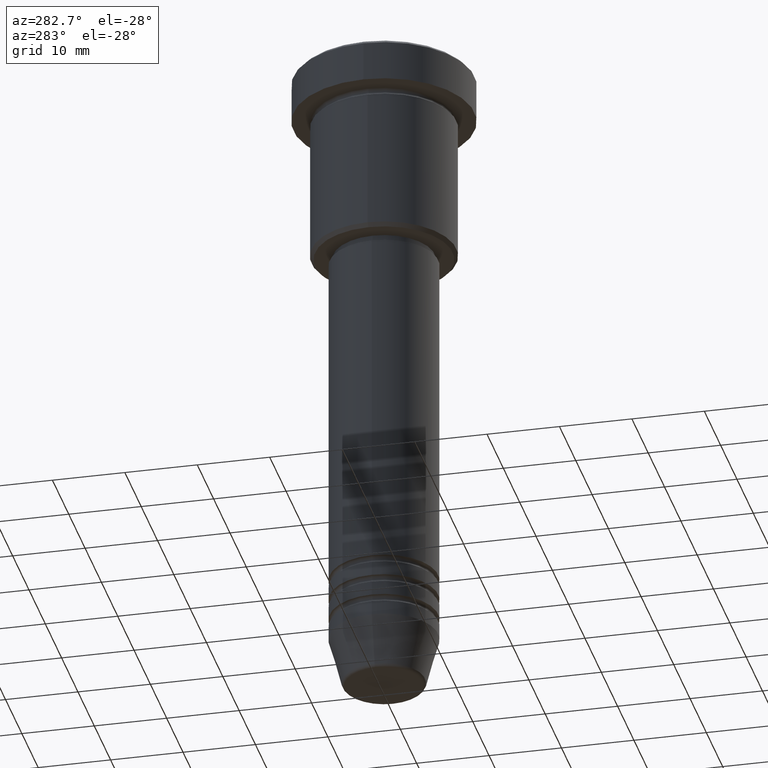
[diagram: clean part render]
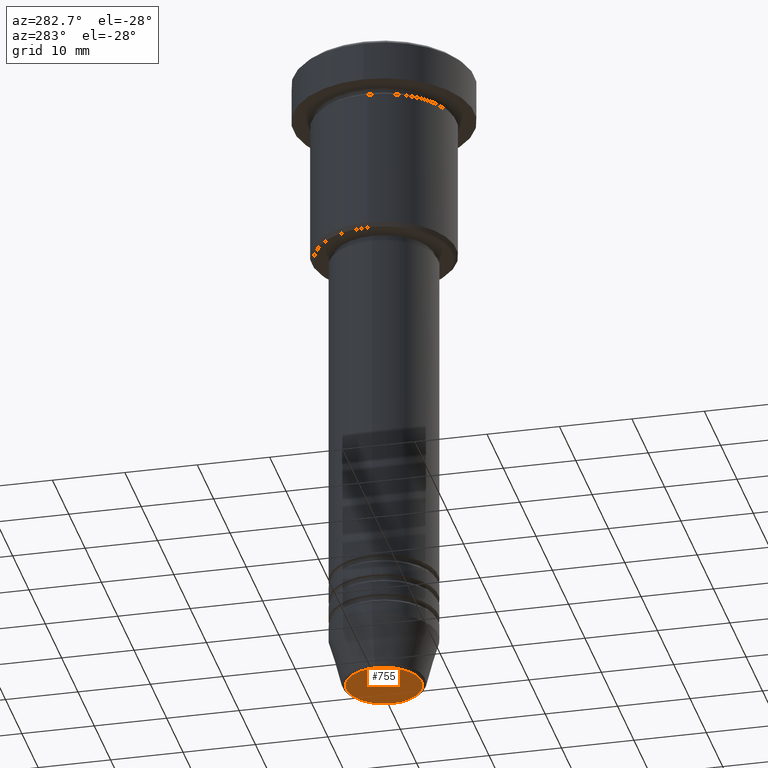
[diagram: same view with one face highlighted and labeled with its STEP entity id]
A machine part, auxiliary view. The second image highlights one B-rep face of the part: STEP entity #755.
In plain terms, the highlighted planar face has unit normal (0, -0, 1).
Its self-contained STEP definition (entity closure, byte-faithful):
#13 = CARTESIAN_POINT ( 'NONE',  ( 5.240692158992654726, 0.000000000000000000, -92.00000000000000000 ) ) ;
#70 = PLANE ( 'NONE',  #843 ) ;
#89 = DIRECTION ( 'NONE',  ( 0.000000000000000000, 0.000000000000000000, -1.000000000000000000 ) ) ;
#133 = DIRECTION ( 'NONE',  ( 0.000000000000000000, -0.000000000000000000, 1.000000000000000000 ) ) ;
#258 = CIRCLE ( 'NONE', #865, 5.240692158992654726 ) ;
#436 = ORIENTED_EDGE ( 'NONE', *, *, #886, .T. ) ;
#440 = EDGE_CURVE ( 'NONE', #562, #1155, #258, .T. ) ;
#457 = CARTESIAN_POINT ( 'NONE',  ( 0.000000000000000000, 0.000000000000000000, -92.00000000000000000 ) ) ;
#509 = CIRCLE ( 'NONE', #903, 5.240692158992654726 ) ;
#554 = CARTESIAN_POINT ( 'NONE',  ( -5.240692158992654726, 6.713726370671654515E-16, -92.00000000000000000 ) ) ;
#562 = VERTEX_POINT ( 'NONE', #554 ) ;
#604 = DIRECTION ( 'NONE',  ( 0.000000000000000000, 0.000000000000000000, -1.000000000000000000 ) ) ;
#609 = DIRECTION ( 'NONE',  ( 1.000000000000000000, 0.000000000000000000, 0.000000000000000000 ) ) ;
#755 = ADVANCED_FACE ( 'NONE', ( #1034 ), #70, .F. ) ;
#813 = DIRECTION ( 'NONE',  ( 1.000000000000000000, 0.000000000000000000, 0.000000000000000000 ) ) ;
#830 = EDGE_LOOP ( 'NONE', ( #436, #928 ) ) ;
#843 = AXIS2_PLACEMENT_3D ( 'NONE', #884, #133, #854 ) ;
#854 = DIRECTION ( 'NONE',  ( 1.000000000000000000, 0.000000000000000000, 0.000000000000000000 ) ) ;
#865 = AXIS2_PLACEMENT_3D ( 'NONE', #457, #89, #813 ) ;
#884 = CARTESIAN_POINT ( 'NONE',  ( 0.000000000000000000, 0.000000000000000000, -92.00000000000000000 ) ) ;
#886 = EDGE_CURVE ( 'NONE', #1155, #562, #509, .T. ) ;
#903 = AXIS2_PLACEMENT_3D ( 'NONE', #939, #604, #609 ) ;
#928 = ORIENTED_EDGE ( 'NONE', *, *, #440, .T. ) ;
#939 = CARTESIAN_POINT ( 'NONE',  ( 0.000000000000000000, 0.000000000000000000, -92.00000000000000000 ) ) ;
#1034 = FACE_OUTER_BOUND ( 'NONE', #830, .T. ) ;
#1155 = VERTEX_POINT ( 'NONE', #13 ) ;